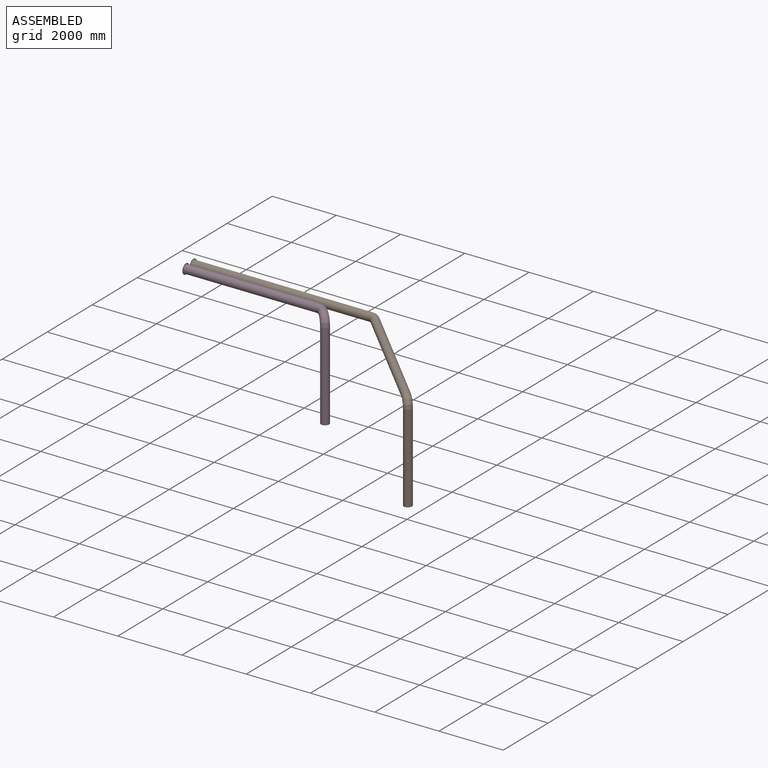
[diagram: assembled view]
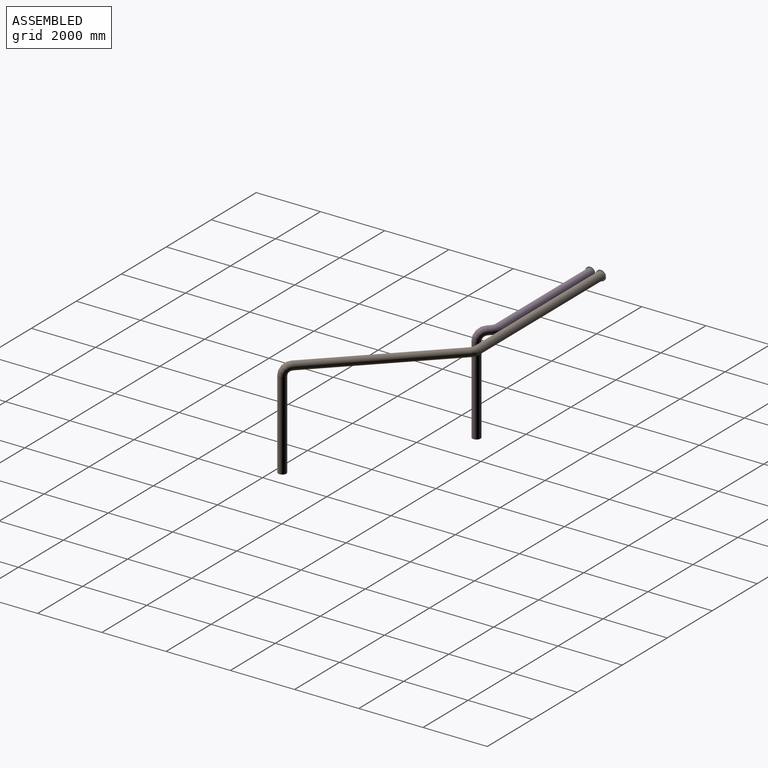
[diagram: assembled view, second angle]
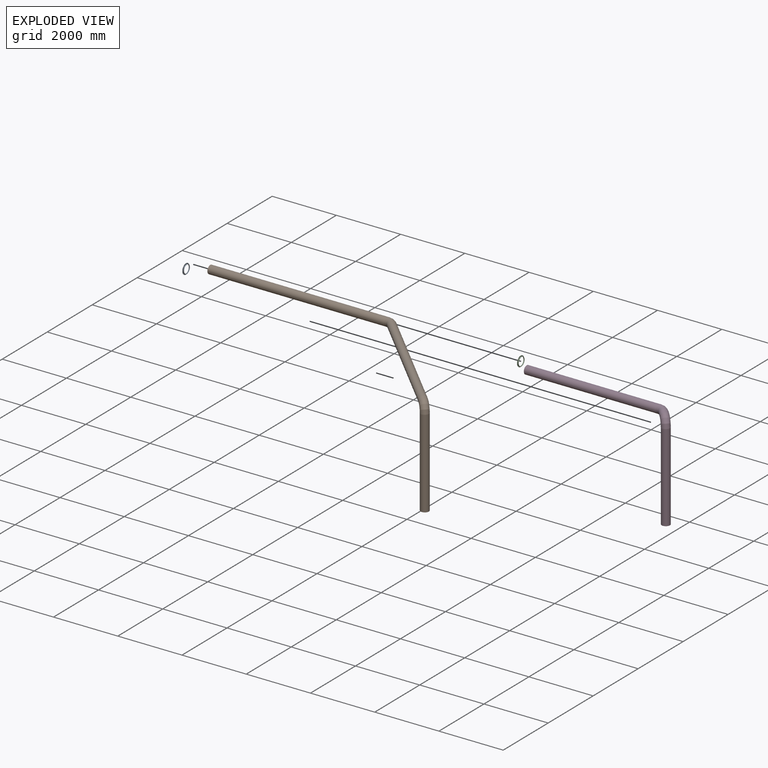
[diagram: exploded view]
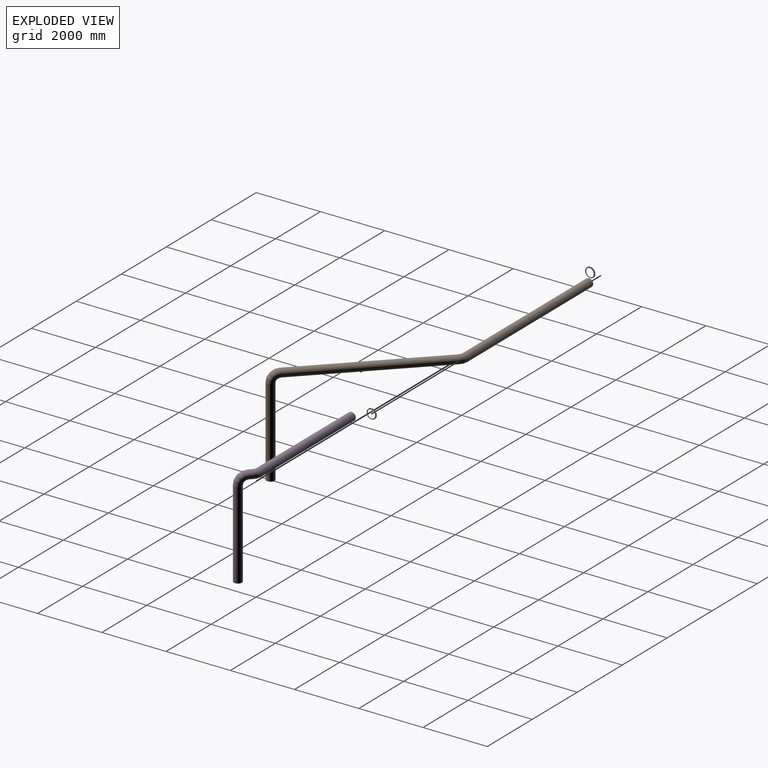
[diagram: exploded view, second angle]
ASSEMBLY  parts=4 mates=2
PART A: 14 faces, bbox 319.1x319.1x31.8 mm
  f0: cylinder r=7.94mm len=15.88mm, axis (0,0,-1), area 158.3mm2, adj f10,f12
  f1: cylinder r=7.94mm len=15.88mm, axis (0,0,-1), area 158.3mm2, adj f10,f12
  f2: cylinder r=7.94mm len=15.88mm, axis (0,0,-1), area 158.3mm2, adj f10,f12
  f3: cylinder r=7.94mm len=15.88mm, axis (0,0,-1), area 158.3mm2, adj f10,f12
  f4: cylinder r=7.94mm len=15.88mm, axis (0,0,-1), area 158.3mm2, adj f10,f12
  f5: cylinder r=7.94mm len=15.88mm, axis (0,0,-1), area 158.3mm2, adj f10,f12
  f6: cylinder r=7.94mm len=15.88mm, axis (0,0,-1), area 158.3mm2, adj f10,f12
  f7: plane 261.94x261.94mm, normal (0,0,1), area 2581mm2, adj f9,f11
  f8: cylinder r=159.54mm len=319.09mm, axis (0,0,-1), area 3182.8mm2, adj f10,f12
  f9: cylinder r=127.79mm len=255.59mm, axis (0,0,-1), area 25493.7mm2, adj f7,f10
  f10: plane 319.09x319.09mm, normal (0,0,-1), area 27077.2mm2, adj f0,f1,f2,f3,f4,f5,f6,f8
  f11: cylinder r=130.97mm len=261.94mm, axis (0,0,-1), area 23514.4mm2, adj f7,f12
  f12: plane 319.09x319.09mm, normal (0,0,1), area 24496.1mm2, adj f0,f1,f2,f3,f4,f5,f6,f8
  f13: cylinder r=7.94mm len=15.88mm, axis (0,0,-1), area 158.3mm2, adj f10,f12
PART B: 11 faces, bbox 9271.5x3772.4x3117.9 mm
  f0: plane 254x254mm, normal (0,0,-1), area 50670.7mm2, adj f2
  f1: plane 254x254mm, normal (-1,0,0), area 50670.7mm2, adj f10
  f2: cylinder r=127mm len=2749.36mm, axis (0,0,-1), area 2183568.4mm2, adj f0,f3
  f3: cylinder r=127mm len=270.46mm, axis (0.14,-0.14,-0.98), area 78742.4mm2, adj f2,f4
  f4: cylinder r=127mm len=292.37mm, axis (0.39,-0.39,-0.83), area 79083.6mm2, adj f3,f5
  f5: cylinder r=127mm len=294.34mm, axis (0.59,-0.59,-0.56), area 79083.6mm2, adj f4,f6
  f6: cylinder r=127mm len=277.93mm, axis (0.69,-0.69,-0.2), area 78742.4mm2, adj f5,f7
  f7: cylinder r=127mm len=3461.2mm, axis (0.71,-0.71,0), area 3682945.2mm2, adj f6,f8
  f8: cylinder r=127mm len=287.25mm, axis (0.83,-0.56,0), area 79083.4mm2, adj f7,f9
  f9: cylinder r=127mm len=275.83mm, axis (0.98,-0.2,0), area 79083.4mm2, adj f8,f10
  f10: cylinder r=127mm len=5533.4mm, axis (1,0,0), area 4405474.4mm2, adj f1,f9
PART C: same geometry as A
PART D: 11 faces, bbox 4699.5x597.4x3117.9 mm
  f0: plane 254x254mm, normal (0,0,-1), area 50670.7mm2, adj f2
  f1: plane 254x254mm, normal (-1,0,0), area 50670.7mm2, adj f10
  f2: cylinder r=127mm len=2733.15mm, axis (0,0,-1), area 2170629.6mm2, adj f0,f3
  f3: cylinder r=127mm len=271.33mm, axis (0.14,-0.14,-0.98), area 83790.9mm2, adj f2,f4
  f4: cylinder r=127mm len=294.86mm, axis (0.39,-0.39,-0.83), area 84132mm2, adj f3,f5
  f5: cylinder r=127mm len=297.85mm, axis (0.59,-0.59,-0.56), area 84132mm2, adj f4,f6
  f6: cylinder r=127mm len=282.32mm, axis (0.69,-0.69,-0.2), area 83790.9mm2, adj f5,f7
  f7: cylinder r=127mm len=274.74mm, axis (0.71,-0.71,0), area 87043.5mm2, adj f6,f8
  f8: cylinder r=127mm len=287.25mm, axis (0.83,-0.56,0), area 79083.4mm2, adj f7,f9
  f9: cylinder r=127mm len=275.83mm, axis (0.98,-0.2,0), area 79083.4mm2, adj f8,f10
  f10: cylinder r=127mm len=4136.4mm, axis (1,0,0), area 3290717.9mm2, adj f1,f9
PLACE A rot(axis=(0.71,0,0.71),180deg) t=(2588.05,1616.06,2449.7)mm
PLACE B t=(1368.85,1781.16,-725.3)mm
PLACE C rot(axis=(0.71,0,0.71),180deg) t=(2588.05,1946.26,2449.7)mm
PLACE D t=(1368.85,1781.16,-725.3)mm
MATE fastened A.f8 <-> D.f10  axis (-1,0,0) through (2588.05,1616.06,2449.7)mm
MATE fastened B.f10 <-> C.f8  axis (1,0,0) through (2588.05,1946.26,2449.7)mm
